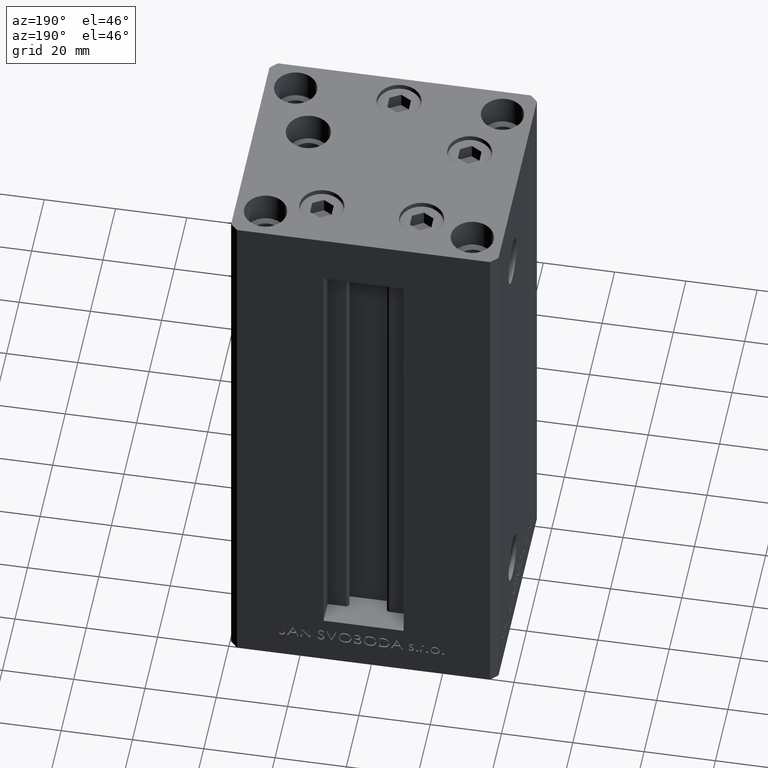
[diagram: clean part render]
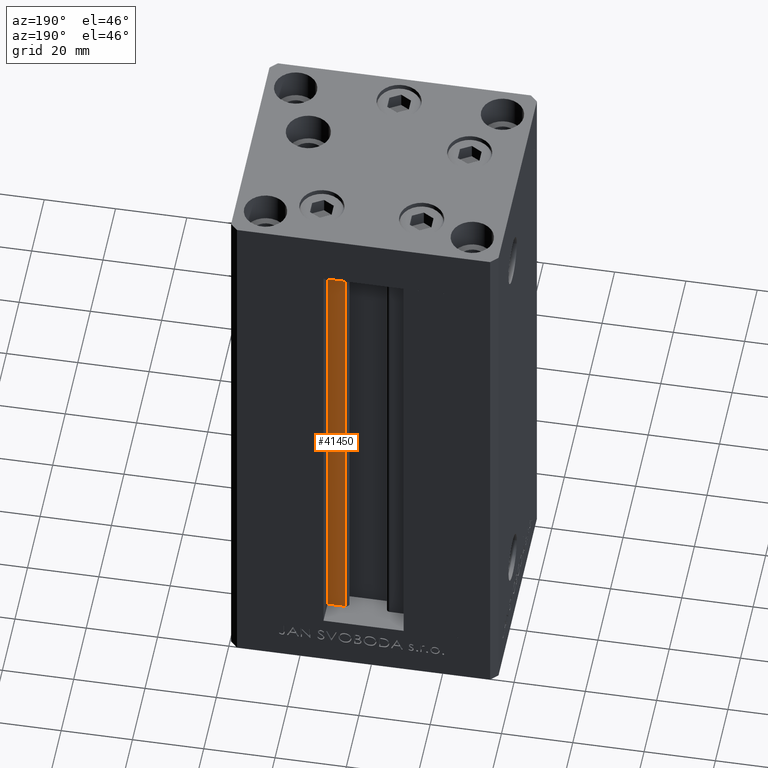
[diagram: same view with one face highlighted and labeled with its STEP entity id]
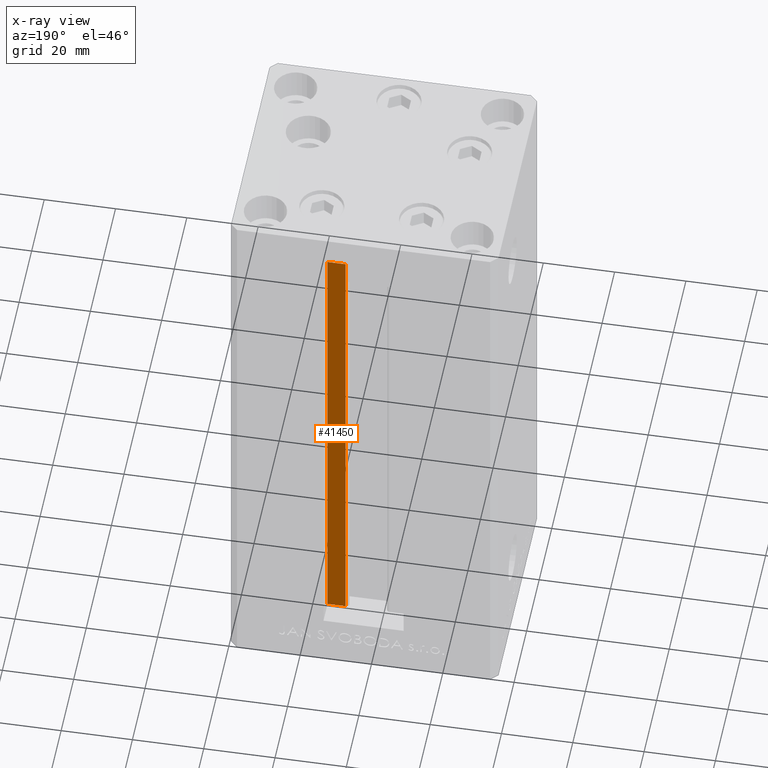
[diagram: x-ray of the same camera — body ghosted, the highlighted face saturated]
A machine part, auxiliary view. The second image highlights one B-rep face of the part: STEP entity #41450.
The next image is the same camera in x-ray: the body ghosted, the highlighted face saturated — about 0% of this face is hidden behind the body in this view.
In plain terms, the highlighted planar face has unit normal (0, -1, 0).
Its self-contained STEP definition (entity closure, byte-faithful):
#88 = EDGE_CURVE ( 'NONE', #40570, #24272, #12344, .T. ) ;
#133 = DIRECTION ( 'NONE',  ( -0.000000000000000000, -0.000000000000000000, 1.000000000000000000 ) ) ;
#140 = CARTESIAN_POINT ( 'NONE',  ( 11.25000000000000178, 25.99999999999999289, 0.000000000000000000 ) ) ;
#2464 = LINE ( 'NONE', #34527, #11863 ) ;
#2759 = CARTESIAN_POINT ( 'NONE',  ( 6.183333333334001480, 25.99999999999999289, 0.000000000000000000 ) ) ;
#3968 = DIRECTION ( 'NONE',  ( -0.000000000000000000, -0.000000000000000000, 1.000000000000000000 ) ) ;
#6872 = EDGE_LOOP ( 'NONE', ( #22911, #9765, #17092, #27842 ) ) ;
#8345 = CARTESIAN_POINT ( 'NONE',  ( 6.183333333334001480, 25.99999999999999289, 0.000000000000000000 ) ) ;
#8490 = CARTESIAN_POINT ( 'NONE',  ( 6.183333333334001480, 25.99999999999999289, 0.000000000000000000 ) ) ;
#9572 = DIRECTION ( 'NONE',  ( -1.000000000000000000, 0.000000000000000000, 0.000000000000000000 ) ) ;
#9765 = ORIENTED_EDGE ( 'NONE', *, *, #29884, .F. ) ;
#10282 = AXIS2_PLACEMENT_3D ( 'NONE', #2759, #44224, #36427 ) ;
#11863 = VECTOR ( 'NONE', #133, 1000.000000000000000 ) ;
#12344 = LINE ( 'NONE', #16361, #20909 ) ;
#13523 = VERTEX_POINT ( 'NONE', #8345 ) ;
#16361 = CARTESIAN_POINT ( 'NONE',  ( 0.000000000000000000, 25.99999999999999289, 136.0000000000000000 ) ) ;
#17092 = ORIENTED_EDGE ( 'NONE', *, *, #39560, .T. ) ;
#17837 = PLANE ( 'NONE',  #10282 ) ;
#20909 = VECTOR ( 'NONE', #9572, 1000.000000000000000 ) ;
#22911 = ORIENTED_EDGE ( 'NONE', *, *, #37334, .F. ) ;
#24272 = VERTEX_POINT ( 'NONE', #43532 ) ;
#25869 = FACE_OUTER_BOUND ( 'NONE', #6872, .T. ) ;
#27842 = ORIENTED_EDGE ( 'NONE', *, *, #88, .F. ) ;
#28221 = VERTEX_POINT ( 'NONE', #140 ) ;
#28778 = VECTOR ( 'NONE', #3968, 1000.000000000000000 ) ;
#29485 = DIRECTION ( 'NONE',  ( 1.000000000000000000, 0.000000000000000000, 0.000000000000000000 ) ) ;
#29884 = EDGE_CURVE ( 'NONE', #13523, #28221, #29973, .T. ) ;
#29973 = LINE ( 'NONE', #41060, #45330 ) ;
#30601 = LINE ( 'NONE', #8490, #28778 ) ;
#34527 = CARTESIAN_POINT ( 'NONE',  ( 11.25000000000000178, 25.99999999999999289, 0.000000000000000000 ) ) ;
#36427 = DIRECTION ( 'NONE',  ( 0.000000000000000000, -0.000000000000000000, -1.000000000000000000 ) ) ;
#37334 = EDGE_CURVE ( 'NONE', #28221, #40570, #2464, .T. ) ;
#39560 = EDGE_CURVE ( 'NONE', #13523, #24272, #30601, .T. ) ;
#40570 = VERTEX_POINT ( 'NONE', #42666 ) ;
#41060 = CARTESIAN_POINT ( 'NONE',  ( 6.183333333334001480, 25.99999999999999289, 0.000000000000000000 ) ) ;
#41450 = ADVANCED_FACE ( 'NONE', ( #25869 ), #17837, .F. ) ;
#42666 = CARTESIAN_POINT ( 'NONE',  ( 11.25000000000000178, 25.99999999999999289, 136.0000000000000000 ) ) ;
#43532 = CARTESIAN_POINT ( 'NONE',  ( 6.183333333334001480, 25.99999999999999289, 136.0000000000000000 ) ) ;
#44224 = DIRECTION ( 'NONE',  ( 0.000000000000000000, -1.000000000000000000, 0.000000000000000000 ) ) ;
#45330 = VECTOR ( 'NONE', #29485, 1000.000000000000000 ) ;